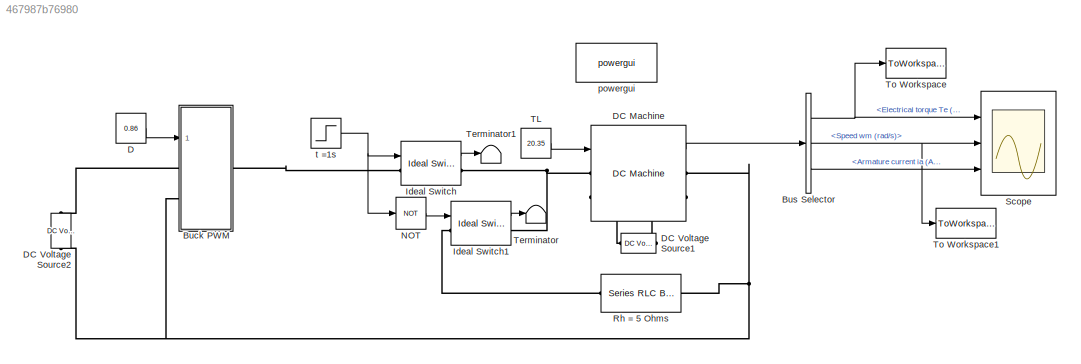
MODEL slx_467987b76980
KIND model
CONFIG AbsTol = auto
CONFIG EnableMultiTasking = off
CONFIG FixedStep = auto
CONFIG MaxStep = auto
CONFIG MinStep = auto
CONFIG RelTol = 1e-3
CONFIG SampleTimeConstraint = Unconstrained
CONFIG Solver = VariableStepAuto
CONFIG SolverName = VariableStepAuto
CONFIG StartTime = 0.0
CONFIG StopTime = 5
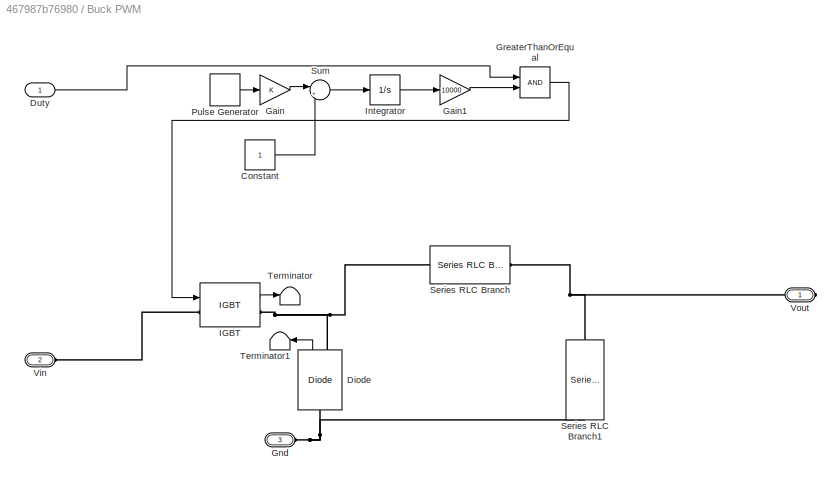
BLOCK [SubSystem] Buck PWM
  Ports = [1, 0, 0, 0, 0, 2, 1]
  RequestExecContextInheritance = off
BLOCK [Constant] Buck PWM/Constant
BLOCK [Reference] Buck PWM/Diode  REF=powerlib/Power
Electronics/Diode
  Ports = [0, 1, 0, 0, 0, 1, 1]
  SourceBlock = powerlib/Power\nElectronics/Diode
  SourceProductBaseCode = PS
  SourceProductName = Simscape Electrical
  SourceType = Diode
BLOCK [Inport] Buck PWM/Duty
  IconDisplay = Port number
BLOCK [Gain] Buck PWM/Gain
  OutDataTypeStr = Inherit: Inherit via internal rule
  ParamDataTypeStr = Inherit: Inherit via internal rule
  SaturateOnIntegerOverflow = off
BLOCK [Gain] Buck PWM/Gain1
  Gain = 10000
  OutDataTypeStr = Inherit: Inherit via internal rule
  ParamDataTypeStr = Inherit: Inherit via internal rule
  SaturateOnIntegerOverflow = off
BLOCK [PMIOPort] Buck PWM/Gnd
  Port = 3
  Side = Left
BLOCK [RelationalOperator] Buck PWM/GreaterThanOrEqual
  InputSameDT = off
  OutDataTypeStr = boolean
  Ports = [2, 1]
  RndMeth = Simplest
BLOCK [Reference] Buck PWM/IGBT  REF=powerlib/Power
Electronics/IGBT
  Ports = [1, 1, 0, 0, 0, 1, 1]
  SourceBlock = powerlib/Power\nElectronics/IGBT
  SourceProductBaseCode = PS
  SourceProductName = Simscape Electrical
  SourceType = IGBT
BLOCK [Integrator] Buck PWM/Integrator
  Ports = [1, 1]
BLOCK [DiscretePulseGenerator] Buck PWM/Pulse Generator
  Amplitude = 2
  Period = 1/5000
  Ports = [0, 1]
  PulseType = Time based
  PulseWidth = 50
BLOCK [Reference] Buck PWM/Series RLC Branch  REF=powerlib/Elements/Series RLC Branch
  Ports = [0, 0, 0, 0, 0, 1, 1]
  SourceBlock = powerlib/Elements/Series RLC Branch
  SourceProductBaseCode = PS
  SourceProductName = Simscape Electrical
  SourceType = Series RLC Branch
BLOCK [Reference] Buck PWM/Series RLC Branch1  REF=powerlib/Elements/Series RLC Branch
  Ports = [0, 0, 0, 0, 0, 1, 1]
  SourceBlock = powerlib/Elements/Series RLC Branch
  SourceProductBaseCode = PS
  SourceProductName = Simscape Electrical
  SourceType = Series RLC Branch
BLOCK [Sum] Buck PWM/Sum
  IconShape = round
  InputSameDT = off
  Inputs = |+-
  OutDataTypeStr = Inherit: Inherit via internal rule
  Ports = [2, 1]
  SaturateOnIntegerOverflow = off
BLOCK [Terminator] Buck PWM/Terminator
BLOCK [Terminator] Buck PWM/Terminator1
BLOCK [PMIOPort] Buck PWM/Vin
  Port = 2
  Side = Left
BLOCK [PMIOPort] Buck PWM/Vout
  Side = Right
BLOCK [BusSelector] Bus Selector
  OutputAsBus = off
  OutputSignals = Electrical torque Te (n m),Speed wm (rad/s),Armature current ia (A)
  Ports = [1, 3]
BLOCK [Constant] D
  Value = 0.86
BLOCK [Reference] DC Machine  REF=powerlib/Machines/DC Machine
  Ports = [1, 1, 0, 0, 0, 2, 2]
  SourceBlock = powerlib/Machines/DC Machine
  SourceProductBaseCode = PS
  SourceProductName = Simscape Electrical
  SourceType = DC machine
BLOCK [Reference] DC Voltage Source1  REF=powerlib/Electrical
Sources/DC Voltage Source
  Ports = [0, 0, 0, 0, 0, 1, 1]
  SourceBlock = powerlib/Electrical\nSources/DC Voltage Source
  SourceProductBaseCode = PS
  SourceProductName = Simscape Electrical
  SourceType = DC Voltage Source
BLOCK [Reference] DC Voltage Source2  REF=powerlib/Electrical
Sources/DC Voltage Source
  Ports = [0, 0, 0, 0, 0, 1, 1]
  SourceBlock = powerlib/Electrical\nSources/DC Voltage Source
  SourceProductBaseCode = PS
  SourceProductName = Simscape Electrical
  SourceType = DC Voltage Source
BLOCK [Reference] Ideal Switch  REF=powerlib/Power
Electronics/Ideal Switch
  Ports = [1, 1, 0, 0, 0, 1, 1]
  SourceBlock = powerlib/Power\nElectronics/Ideal Switch
  SourceProductBaseCode = PS
  SourceProductName = Simscape Electrical
  SourceType = Ideal Switch
BLOCK [Reference] Ideal Switch1  REF=powerlib/Power
Electronics/Ideal Switch
  Ports = [1, 1, 0, 0, 0, 1, 1]
  SourceBlock = powerlib/Power\nElectronics/Ideal Switch
  SourceProductBaseCode = PS
  SourceProductName = Simscape Electrical
  SourceType = Ideal Switch
BLOCK [Logic] NOT
  AllPortsSameDT = off
  IconShape = distinctive
  Operator = NOT
  OutDataTypeStr = boolean
  Ports = [1, 1]
BLOCK [Reference] Rh = 5 Ohms  REF=powerlib/Elements/Series RLC Branch
  Ports = [0, 0, 0, 0, 0, 1, 1]
  SourceBlock = powerlib/Elements/Series RLC Branch
  SourceProductBaseCode = PS
  SourceProductName = Simscape Electrical
  SourceType = Series RLC Branch
BLOCK [Scope] Scope
  Floating = off
  NumInputPorts = 3
  Ports = [3]
  ScopeSpecificationString = Simulink.scopes.TimeScopeBlockCfg('CurrentConfiguration', extmgr.ConfigurationSet(extmgr.Configuration('Core','General UI',true,'FigureColor',[1 1 1]),extmgr.Configuration('Core','Source UI',true),extmgr.Configuration('Sources','WiredSimulink',true,'DataLoggingDecimation','4'),extmgr.Configuration('Visuals','Time Domain',true,'SerializedDisplays',{struct('MinYLimReal','-60','MaxYLimReal','310','YL...<+3100ch>
BLOCK [Constant] TL
  Value = 20.35
BLOCK [Terminator] Terminator
BLOCK [Terminator] Terminator1
BLOCK [ToWorkspace] To Workspace
  FixptAsFi = on
  MaxDataPoints = inf
  Ports = [1]
  SampleTime = -1
  Save2DSignal = 2-D array (concatenate along first dimension)
  VariableName = Te
BLOCK [ToWorkspace] To Workspace1
  FixptAsFi = on
  MaxDataPoints = inf
  Ports = [1]
  SampleTime = -1
  VariableName = w
BLOCK [Reference] powergui  REF=powerlib/powergui
  Ports = []
  Priority = 1
  SourceBlock = powerlib/powergui
  SourceProductBaseCode = PS
  SourceProductName = Simscape Electrical
  SourceType = PSB option menu block
BLOCK [Step] t =1s
  After = 0
  Before = 1
  SampleTime = 0
LINE Buck PWM/Constant:1 -> Buck PWM/Sum:2
LINE Buck PWM/Diode:1 -> Buck PWM/Terminator1:1
LINE Buck PWM/Duty:1 -> Buck PWM/GreaterThanOrEqual:1
LINE Buck PWM/Gain1:1 -> Buck PWM/GreaterThanOrEqual:2
LINE Buck PWM/Gain:1 -> Buck PWM/Sum:1
LINE Buck PWM/GreaterThanOrEqual:1 -> Buck PWM/IGBT:1
LINE Buck PWM/IGBT:1 -> Buck PWM/Terminator:1
LINE Buck PWM/Integrator:1 -> Buck PWM/Gain1:1
LINE Buck PWM/Pulse Generator:1 -> Buck PWM/Gain:1
LINE Buck PWM/Sum:1 -> Buck PWM/Integrator:1
NET Bus Selector:1 -> Scope:1, To Workspace:1
NET Bus Selector:2 -> Scope:2, To Workspace1:1
LINE Bus Selector:3 -> Scope:3
LINE D:1 -> Buck PWM:1
LINE DC Machine:1 -> Bus Selector:1
LINE Ideal Switch1:1 -> Terminator:1
LINE Ideal Switch:1 -> Terminator1:1
LINE NOT:1 -> Ideal Switch1:1
LINE TL:1 -> DC Machine:1
NET t =1s:1 -> Ideal Switch:1, NOT:1
PNET net1: Buck PWM/Diode:LConn1 -- Buck PWM/Gnd:RConn1 -- Buck PWM/Series RLC Branch1:RConn1
PNET net2: Buck PWM/Diode:RConn1 -- Buck PWM/IGBT:RConn1 -- Buck PWM/Series RLC Branch:LConn1
PLINE Buck PWM/IGBT:LConn1 -- Buck PWM/Vin:RConn1
PNET net3: Buck PWM/Series RLC Branch1:LConn1 -- Buck PWM/Series RLC Branch:RConn1 -- Buck PWM/Vout:RConn1
PLINE Buck PWM:LConn1 -- DC Voltage Source2:RConn1
PNET net4: Buck PWM:LConn2 -- DC Machine:RConn1 -- DC Voltage Source2:LConn1 -- Rh = 5 Ohms:RConn1
PLINE Buck PWM:RConn1 -- Ideal Switch:LConn1
PNET net5: DC Machine:LConn1 -- Ideal Switch1:RConn1 -- Ideal Switch:RConn1
PLINE DC Machine:LConn2 -- DC Voltage Source1:RConn1
PLINE DC Machine:RConn2 -- DC Voltage Source1:LConn1
PLINE Ideal Switch1:LConn1 -- Rh = 5 Ohms:LConn1
note: NET lines group one-source signal fan-out (src -> all destinations, sorted); 1:1 wires keep LINE; PNET lines group multi-terminal physical nets as a canonical sorted terminal list (undirected conserving connections); 2-terminal nets keep the pairwise PLINE form
